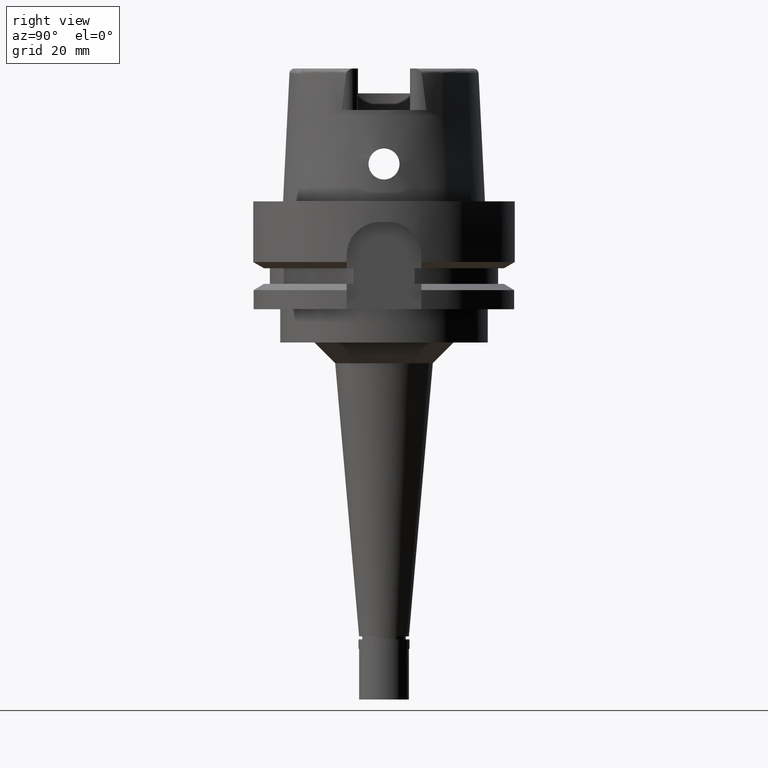
[diagram: clean part render]
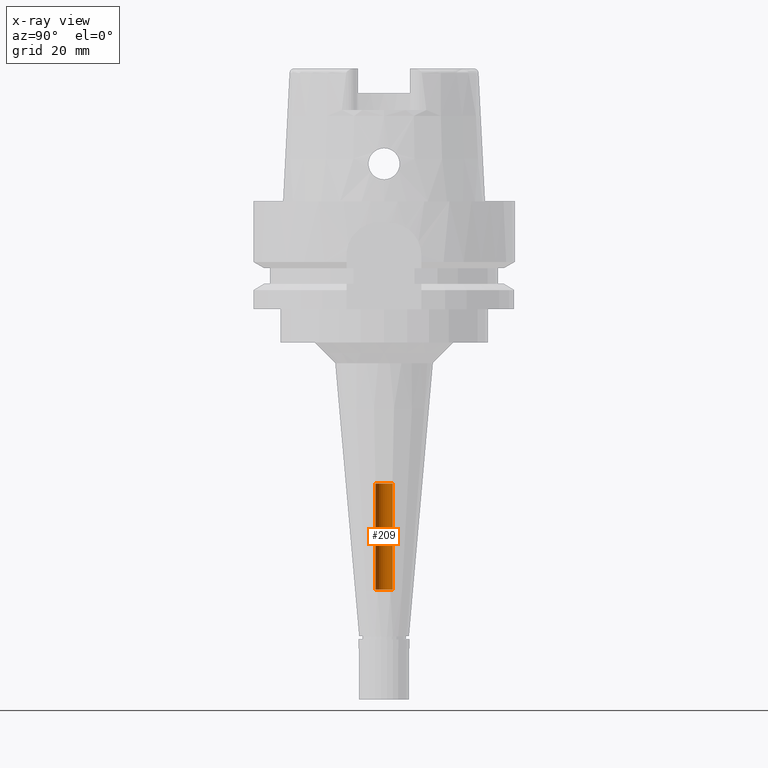
[diagram: x-ray — body ghosted, one internal face saturated and labeled with its STEP entity id]
A machine part, right view, then the same camera in x-ray: the body is ghosted and one INTERNAL B-rep face — a face not visible from any outside direction — is saturated and labeled: STEP entity #209.
In plain terms, the highlighted cylindrical surface (edge-blend (fillet) strip) has radius 2.1 mm, axis along (0, 0, -1).
Its self-contained STEP definition (entity closure, byte-faithful):
#40 = VECTOR ( 'NONE', #5365, 1000.000000000000000 ) ;
#105 = ORIENTED_EDGE ( 'NONE', *, *, #4412, .T. ) ;
#121 = CARTESIAN_POINT ( 'NONE',  ( 0.0000000000000000000, 1.707157638010999903E-14, -68.00000000000000000 ) ) ;
#182 = ORIENTED_EDGE ( 'NONE', *, *, #3854, .F. ) ;
#199 = EDGE_CURVE ( 'NONE', #1374, #451, #3497, .T. ) ;
#209 = ADVANCED_FACE ( 'NONE', ( #1609 ), #2484, .F. ) ;
#365 = EDGE_CURVE ( 'NONE', #451, #4399, #3459, .T. ) ;
#451 = VERTEX_POINT ( 'NONE', #3189 ) ;
#601 = CARTESIAN_POINT ( 'NONE',  ( 0.0000000000000000000, -2.100000000000000089, -68.00000000000000000 ) ) ;
#964 = DIRECTION ( 'NONE',  ( 0.0000000000000000000, 0.0000000000000000000, 1.000000000000000000 ) ) ;
#1004 = DIRECTION ( 'NONE',  ( 0.0000000000000000000, 1.000000000000000000, 0.0000000000000000000 ) ) ;
#1072 = AXIS2_PLACEMENT_3D ( 'NONE', #2508, #3793, #3273 ) ;
#1104 = CIRCLE ( 'NONE', #4053, 2.100000000000000089 ) ;
#1231 = DIRECTION ( 'NONE',  ( 0.0000000000000000000, 0.0000000000000000000, -1.000000000000000000 ) ) ;
#1347 = EDGE_LOOP ( 'NONE', ( #105, #182, #3046, #3959 ) ) ;
#1374 = VERTEX_POINT ( 'NONE', #1571 ) ;
#1571 = CARTESIAN_POINT ( 'NONE',  ( 0.0000000000000000000, -2.100000000000000089, -93.50000000000000000 ) ) ;
#1609 = FACE_OUTER_BOUND ( 'NONE', #1347, .T. ) ;
#2030 = CARTESIAN_POINT ( 'NONE',  ( 0.0000000000000000000, 1.707157638010999903E-14, -93.50000000000000000 ) ) ;
#2484 = CYLINDRICAL_SURFACE ( 'NONE', #1072, 2.100000000000000089 ) ;
#2508 = CARTESIAN_POINT ( 'NONE',  ( 0.0000000000000000000, 1.707157638010999903E-14, 39.39999999999999858 ) ) ;
#2521 = VERTEX_POINT ( 'NONE', #601 ) ;
#2960 = AXIS2_PLACEMENT_3D ( 'NONE', #2030, #1231, #4644 ) ;
#3046 = ORIENTED_EDGE ( 'NONE', *, *, #199, .T. ) ;
#3189 = CARTESIAN_POINT ( 'NONE',  ( 0.0000000000000000000, 2.100000000000000089, -93.50000000000000000 ) ) ;
#3273 = DIRECTION ( 'NONE',  ( 0.0000000000000000000, -1.000000000000000000, 0.0000000000000000000 ) ) ;
#3459 = LINE ( 'NONE', #5206, #4373 ) ;
#3497 = CIRCLE ( 'NONE', #2960, 2.100000000000000089 ) ;
#3793 = DIRECTION ( 'NONE',  ( 0.0000000000000000000, 0.0000000000000000000, -1.000000000000000000 ) ) ;
#3854 = EDGE_CURVE ( 'NONE', #1374, #2521, #4169, .T. ) ;
#3959 = ORIENTED_EDGE ( 'NONE', *, *, #365, .T. ) ;
#4053 = AXIS2_PLACEMENT_3D ( 'NONE', #121, #4744, #1004 ) ;
#4169 = LINE ( 'NONE', #4608, #40 ) ;
#4373 = VECTOR ( 'NONE', #964, 1000.000000000000000 ) ;
#4399 = VERTEX_POINT ( 'NONE', #5187 ) ;
#4412 = EDGE_CURVE ( 'NONE', #4399, #2521, #1104, .T. ) ;
#4608 = CARTESIAN_POINT ( 'NONE',  ( 0.0000000000000000000, -2.100000000000000089, -93.50000000000000000 ) ) ;
#4644 = DIRECTION ( 'NONE',  ( 0.0000000000000000000, -1.000000000000000000, 0.0000000000000000000 ) ) ;
#4744 = DIRECTION ( 'NONE',  ( 0.0000000000000000000, 0.0000000000000000000, 1.000000000000000000 ) ) ;
#5187 = CARTESIAN_POINT ( 'NONE',  ( 0.0000000000000000000, 2.100000000000000089, -68.00000000000000000 ) ) ;
#5206 = CARTESIAN_POINT ( 'NONE',  ( 0.0000000000000000000, 2.100000000000000089, -93.50000000000000000 ) ) ;
#5365 = DIRECTION ( 'NONE',  ( 0.0000000000000000000, 0.0000000000000000000, 1.000000000000000000 ) ) ;